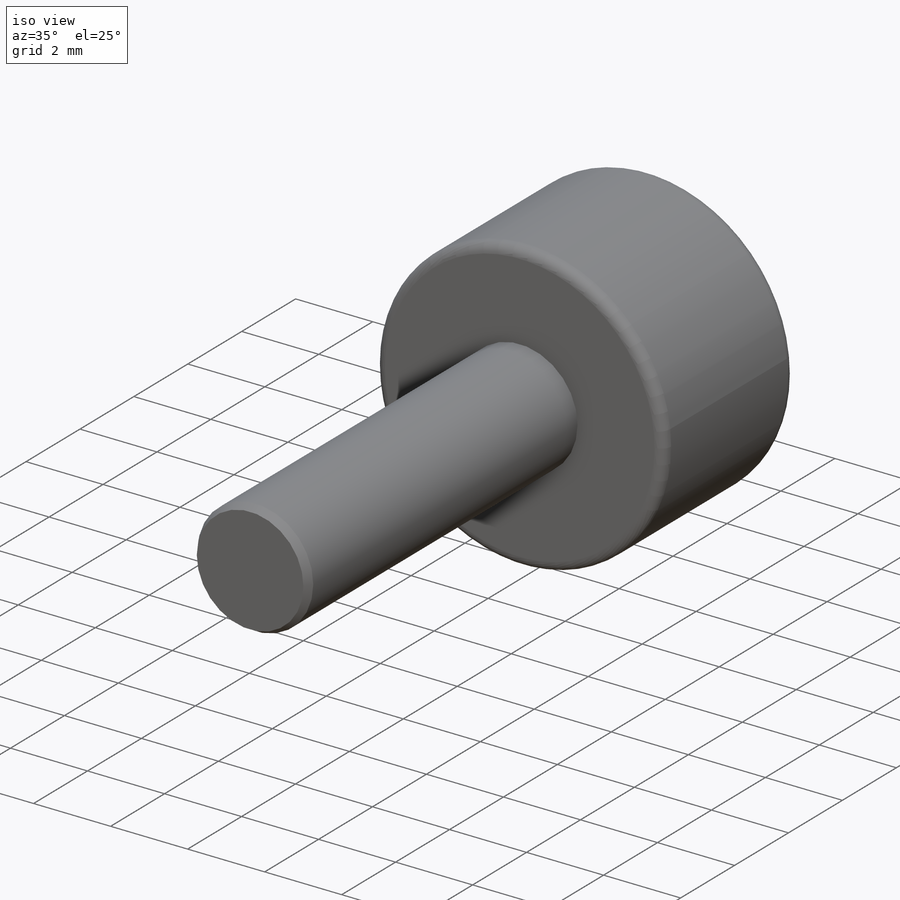
[diagram: iso view]
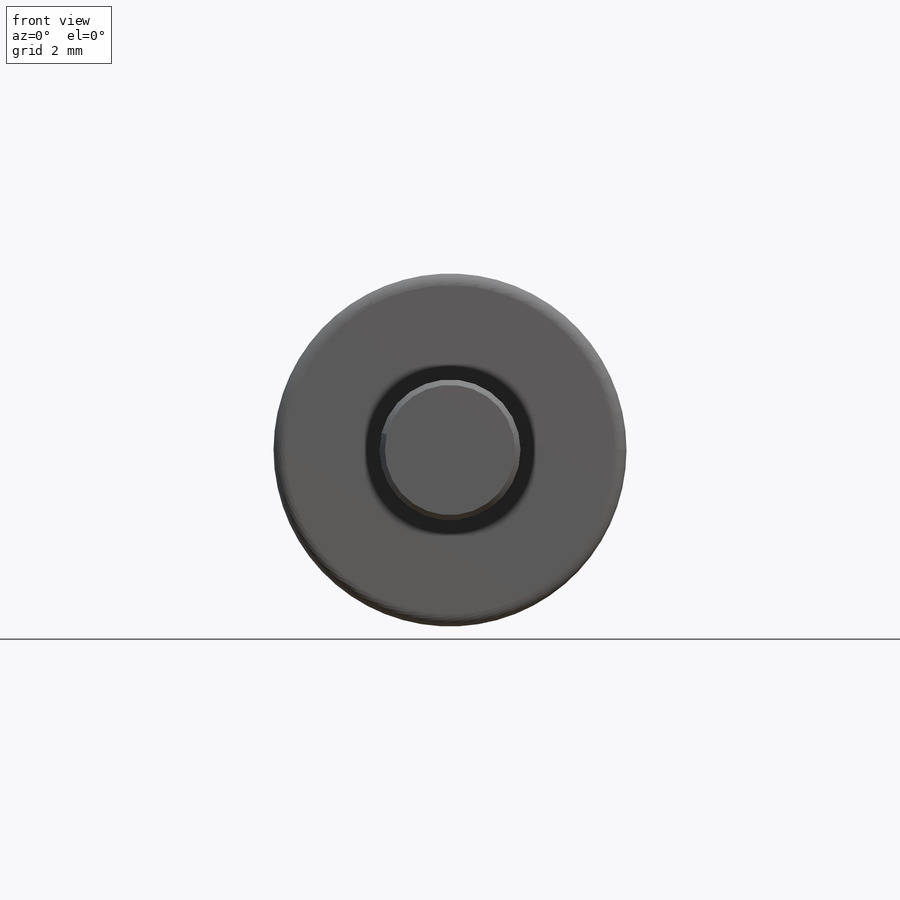
[diagram: front view]
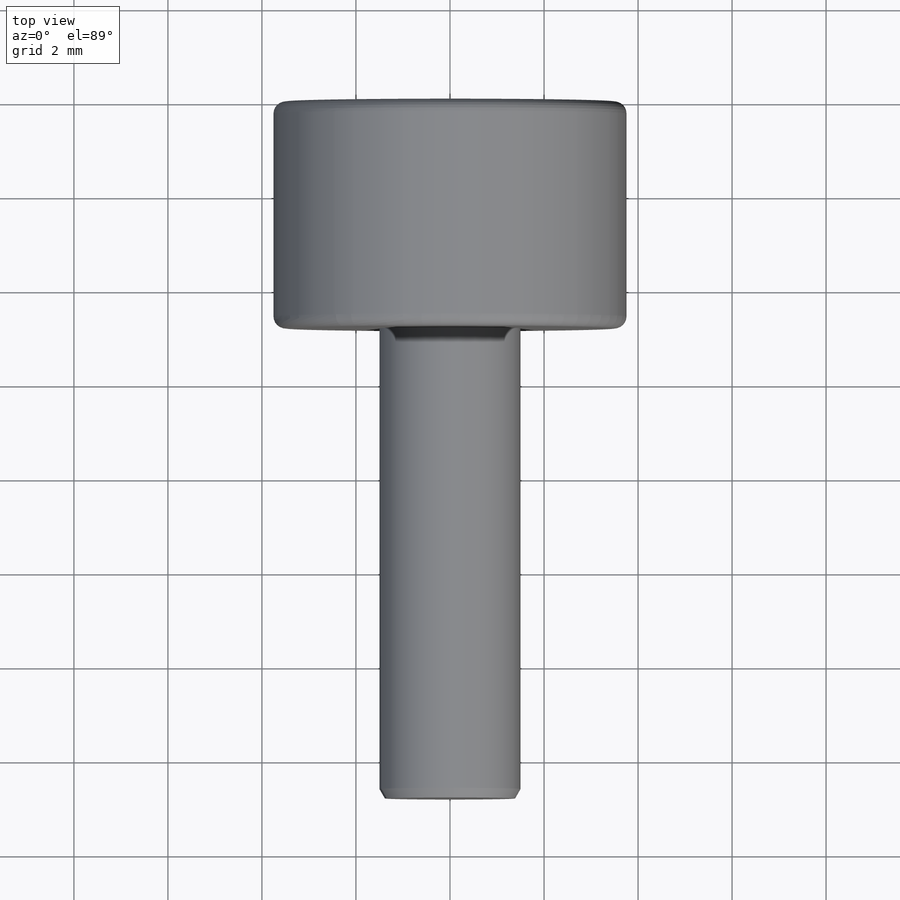
[diagram: top view]
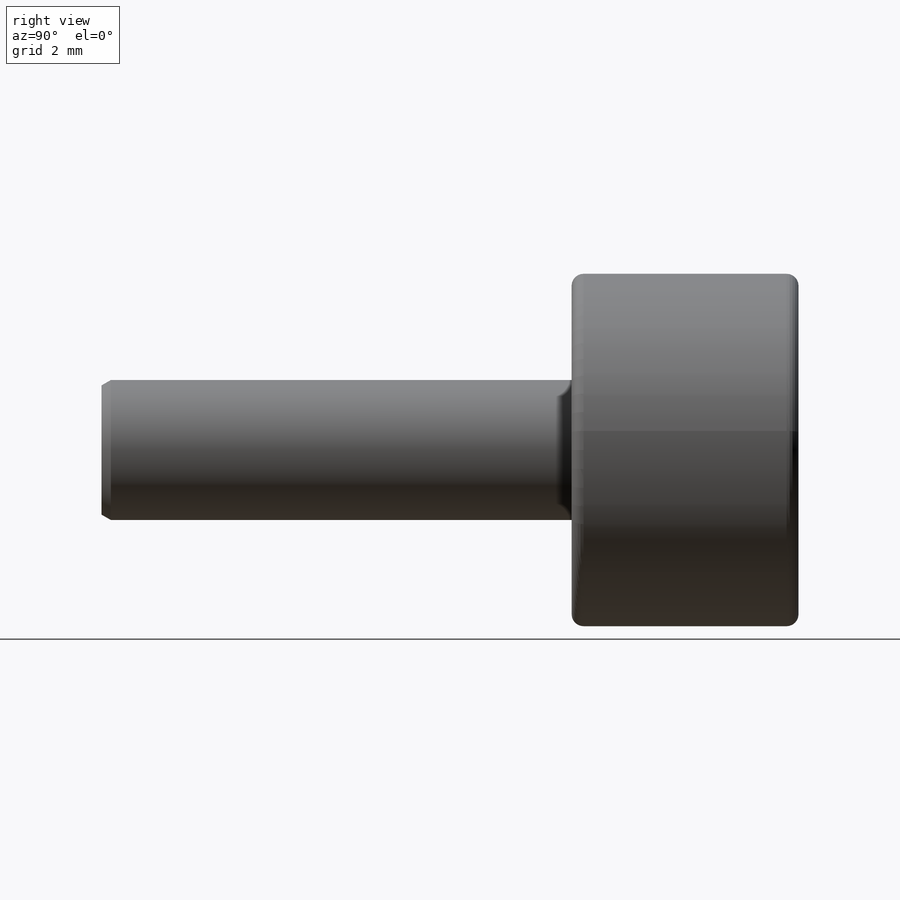
[diagram: right view]
SOLIDWORKS PART (.sldprt)
format: sldprt  version: not decoded by parser v0  size: 211,968 bytes
history: native  units: mm
features: sketch x3, material x1, revolve x1, cut_extrude x1, extrude x1, chamfer x1 (+12 scaffold rows collapsed)
feature tree (20):
  scaffold x12  (default folders/planes/origin — collapsed)
  material  "Material <not specified>"
  sketch  "Sketch1"  dims[c1.D4=0.254mm c1.D1=~3.96875mm c1.D2=4.826mm c1.D3=~3.96875mm c1.D5=~1.071244mm c2.D1=~0.253226mm c2.D2=~0.154758mm c3.D1=4.826mm c3.D2=3.5mm]
  revolve  "Revolve1"  Angle=360deg
  sketch  "Sketch2"  dims[D1=2.55mm D2=0.0mm]
  cut_extrude  "Cut-Extrude1"  Depth=2.54mm
  sketch  "Sketch3"  dims[D1=3.0mm]
  extrude  "Boss-Extrude1"  Depth=10mm
  chamfer  "Chamfer1"  Distance=0.2mm Angle=30deg
decode coverage: 7 of 7 modeling features carry decoded parameters
note: ~ marks probable driven/reference dimensions
note: suppression state not decoded; provenance and decode notes live in map.json
